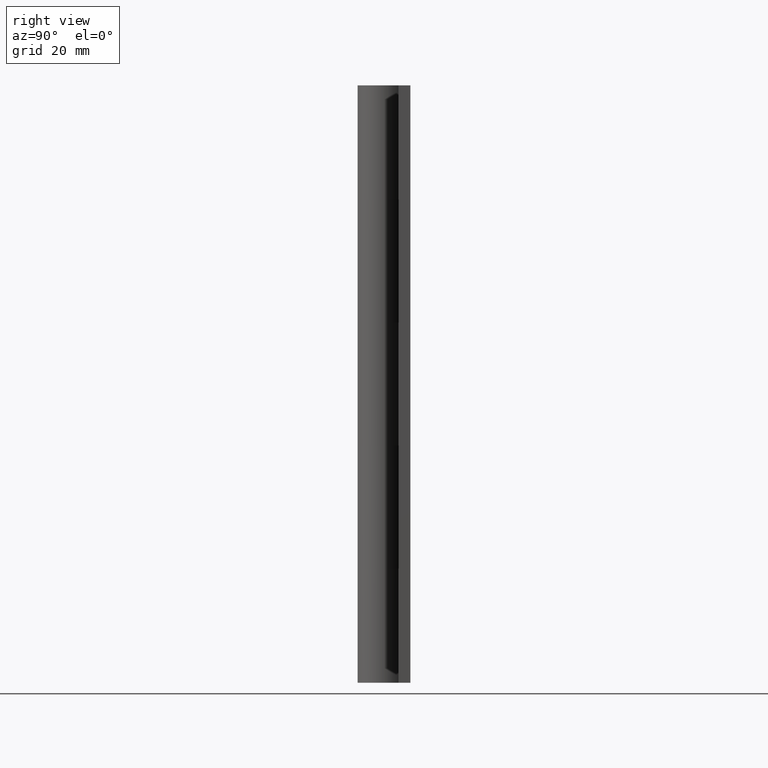
[diagram: clean part render]
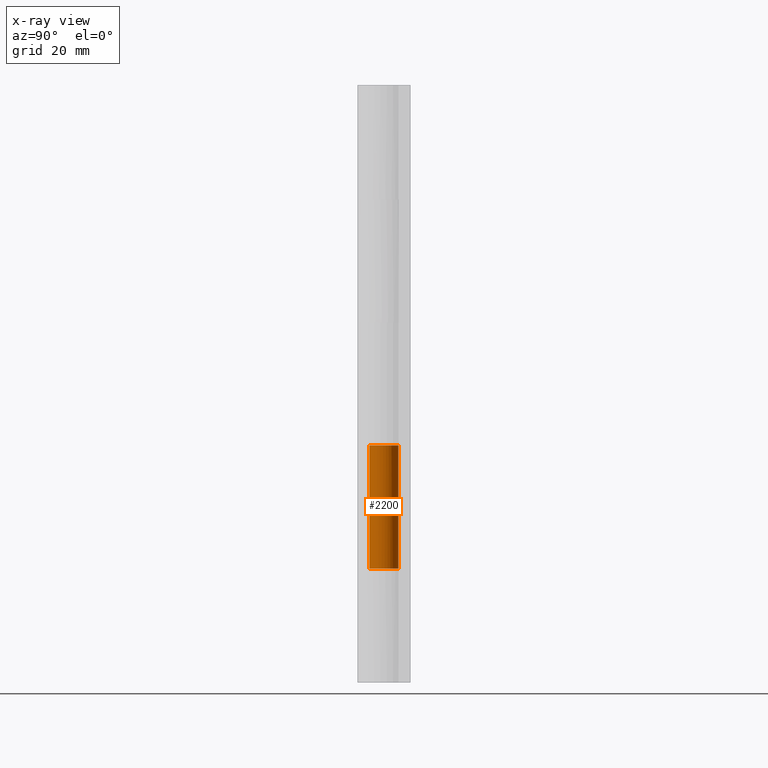
[diagram: x-ray — body ghosted, one internal face saturated and labeled with its STEP entity id]
A machine part, right view, then the same camera in x-ray: the body is ghosted and one INTERNAL B-rep face — a face not visible from any outside direction — is saturated and labeled: STEP entity #2200.
In plain terms, the highlighted face is a freeform B-spline surface patch.
Its self-contained STEP definition (entity closure, byte-faithful):
#1818=CARTESIAN_POINT('',(-2.096992261123030,1.361111111111112,40.500007999999987));
#1819=VERTEX_POINT('',#1818);
#1820=CARTESIAN_POINT('',(0.0,2.500000000000000,40.500007999999987));
#1821=VERTEX_POINT('',#1820);
#1822=CARTESIAN_POINT('',(-2.096992261123029,1.361111111111112,40.500007999999987));
#1823=CARTESIAN_POINT('',(-3.155571509268366,-0.269786229322834,40.500007999999994));
#1824=CARTESIAN_POINT('',(-1.835510960884493,-1.697321275561255,40.500007999999987));
#1825=CARTESIAN_POINT('',(-0.515450412500620,-3.124856321799676,40.500007999999994));
#1826=CARTESIAN_POINT('',(1.193151755273029,-2.196904387744012,40.500007999999987));
#1827=CARTESIAN_POINT('',(2.901753923046679,-1.268952453688346,40.500007999999994));
#1828=CARTESIAN_POINT('',(2.423041577167015,0.615523773155827,40.500007999999987));
#1829=CARTESIAN_POINT('',(1.944329231287352,2.500000000000000,40.500007999999994));
#1830=CARTESIAN_POINT('',(0.0,2.500000000000000,40.500007999999987));
#1838=(BOUNDED_CURVE()B_SPLINE_CURVE(2,(#1822,#1823,#1824,#1825,#1826,#1827,#1828,#1829,#1830),.UNSPECIFIED.,.F.,.U.)B_SPLINE_CURVE_WITH_KNOTS((3,2,2,2,3),(0.0,0.250000000000000,0.500000000000000,0.750000000000000,1.0),.UNSPECIFIED.)CURVE()GEOMETRIC_REPRESENTATION_ITEM()RATIONAL_B_SPLINE_CURVE((1.0,0.789369846542902,1.0,0.789369846542902,1.0,0.789369846542902,1.0,0.789369846542902,1.0))REPRESENTATION_ITEM(''));
#1839=EDGE_CURVE('',#1819,#1821,#1838,.T.);
#2023=CARTESIAN_POINT('',(-2.096992261123030,1.361111111111112,19.500007999999951));
#2024=VERTEX_POINT('',#2023);
#2030=CARTESIAN_POINT('',(0.0,2.500000000000000,19.500007999999951));
#2031=VERTEX_POINT('',#2030);
#2032=CARTESIAN_POINT('',(0.0,2.500000000000000,19.500007999999951));
#2033=CARTESIAN_POINT('',(1.944329231287351,2.500000000000000,19.500007999999948));
#2034=CARTESIAN_POINT('',(2.423041577167015,0.615523773155827,19.500007999999951));
#2035=CARTESIAN_POINT('',(2.901753923046679,-1.268952453688347,19.500007999999948));
#2036=CARTESIAN_POINT('',(1.193151755273030,-2.196904387744012,19.500007999999951));
#2037=CARTESIAN_POINT('',(-0.515450412500620,-3.124856321799677,19.500007999999948));
#2038=CARTESIAN_POINT('',(-1.835510960884493,-1.697321275561255,19.500007999999951));
#2039=CARTESIAN_POINT('',(-3.155571509268364,-0.269786229322835,19.500007999999948));
#2040=CARTESIAN_POINT('',(-2.096992261123030,1.361111111111111,19.500007999999951));
#2048=(BOUNDED_CURVE()B_SPLINE_CURVE(2,(#2032,#2033,#2034,#2035,#2036,#2037,#2038,#2039,#2040),.UNSPECIFIED.,.F.,.U.)B_SPLINE_CURVE_WITH_KNOTS((3,2,2,2,3),(0.0,0.250000000000000,0.500000000000000,0.750000000000000,1.0),.UNSPECIFIED.)CURVE()GEOMETRIC_REPRESENTATION_ITEM()RATIONAL_B_SPLINE_CURVE((1.0,0.789369846542903,1.0,0.789369846542903,1.0,0.789369846542903,1.0,0.789369846542903,1.0))REPRESENTATION_ITEM(''));
#2049=EDGE_CURVE('',#2031,#2024,#2048,.T.);
#2159=CARTESIAN_POINT('',(-2.096992261123030,1.361111111111112,19.500007999999951));
#2160=CARTESIAN_POINT('',(-2.096992261123030,1.361111111111112,40.500007999999987));
#2161=QUASI_UNIFORM_CURVE('',1,(#2159,#2160),.UNSPECIFIED.,.F.,.U.);
#2162=EDGE_CURVE('',#2024,#1819,#2161,.T.);
#2168=CARTESIAN_POINT('',(-0.021816338745933,2.499904807660427,18.975007999999949));
#2169=CARTESIAN_POINT('',(-0.021816338745933,2.499904807660427,41.038133000000002));
#2170=CARTESIAN_POINT('',(3.065308999842232,2.526845742343785,18.975007999999942));
#2171=CARTESIAN_POINT('',(3.065308999842232,2.526845742343785,41.038133000000009));
#2172=CARTESIAN_POINT('',(2.449811761552073,-0.498419836042994,18.975007999999949));
#2173=CARTESIAN_POINT('',(2.449811761552073,-0.498419836042994,41.038133000000002));
#2174=CARTESIAN_POINT('',(1.834314523261914,-3.523685414429773,18.975007999999942));
#2175=CARTESIAN_POINT('',(1.834314523261914,-3.523685414429773,41.038133000000009));
#2176=CARTESIAN_POINT('',(-0.996872672313115,-2.292650185962810,18.975007999999949));
#2177=CARTESIAN_POINT('',(-0.996872672313115,-2.292650185962810,41.038133000000002));
#2178=CARTESIAN_POINT('',(-3.828059867888145,-1.061614957495846,18.975007999999942));
#2179=CARTESIAN_POINT('',(-3.828059867888145,-1.061614957495846,41.038133000000009));
#2180=CARTESIAN_POINT('',(-2.035288795890798,1.451757389277349,18.975007999999949));
#2181=CARTESIAN_POINT('',(-2.035288795890798,1.451757389277349,41.038133000000002));
#2189=(BOUNDED_SURFACE()B_SPLINE_SURFACE(1,2,((#2168,#2170,#2172,#2174,#2176,#2178,#2180),(#2169,#2171,#2173,#2175,#2177,#2179,#2181)),.UNSPECIFIED.,.F.,.F.,.U.)B_SPLINE_SURFACE_WITH_KNOTS((2,2),(3,2,2,3),(0.0,22.063125000000060),(0.0,4.769755326981599,9.539510653963198,14.309265980944801),.UNSPECIFIED.)GEOMETRIC_REPRESENTATION_ITEM()RATIONAL_B_SPLINE_SURFACE(((1.0,0.629320391049838,1.0,0.629320391049838,1.0,0.629320391049838,1.0),(1.0,0.629320391049838,1.0,0.629320391049838,1.0,0.629320391049838,1.0)))REPRESENTATION_ITEM('')SURFACE());
#2190=ORIENTED_EDGE('',*,*,#2162,.T.);
#2191=ORIENTED_EDGE('',*,*,#1839,.T.);
#2192=CARTESIAN_POINT('',(0.0,2.500000000000000,19.500007999999951));
#2193=CARTESIAN_POINT('',(0.0,2.500000000000000,40.500007999999987));
#2194=QUASI_UNIFORM_CURVE('',1,(#2192,#2193),.UNSPECIFIED.,.F.,.U.);
#2195=EDGE_CURVE('',#2031,#1821,#2194,.T.);
#2196=ORIENTED_EDGE('',*,*,#2195,.F.);
#2197=ORIENTED_EDGE('',*,*,#2049,.T.);
#2198=EDGE_LOOP('',(#2190,#2191,#2196,#2197));
#2199=FACE_OUTER_BOUND('',#2198,.T.);
#2200=ADVANCED_FACE('',(#2199),#2189,.F.);